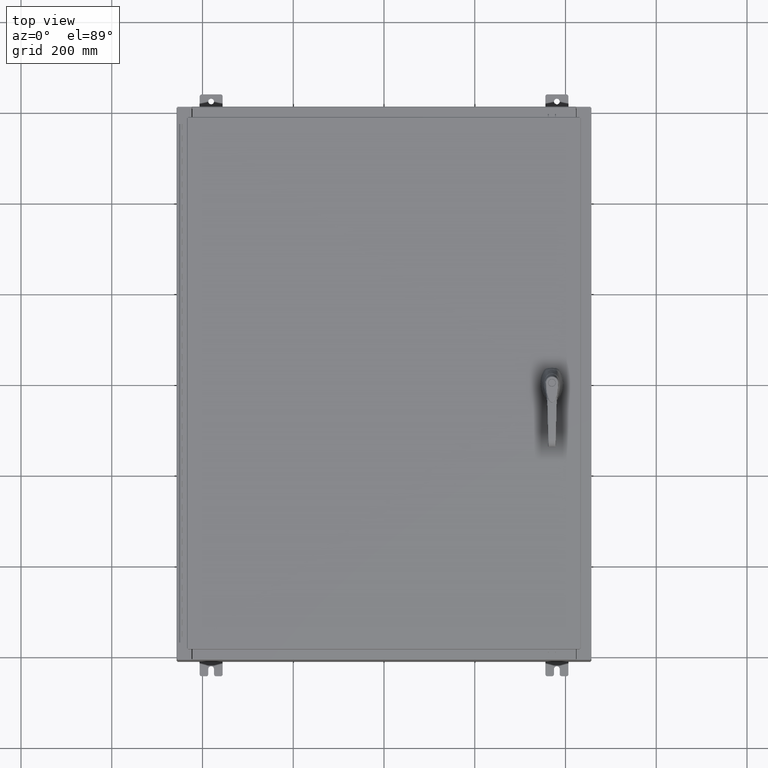
[diagram: clean part render]
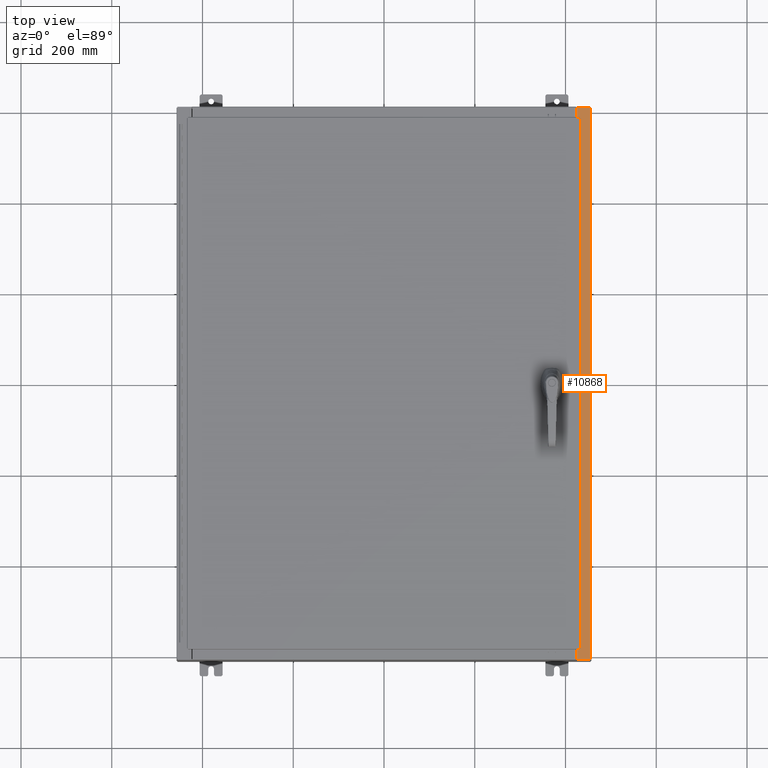
[diagram: same view with one face highlighted and labeled with its STEP entity id]
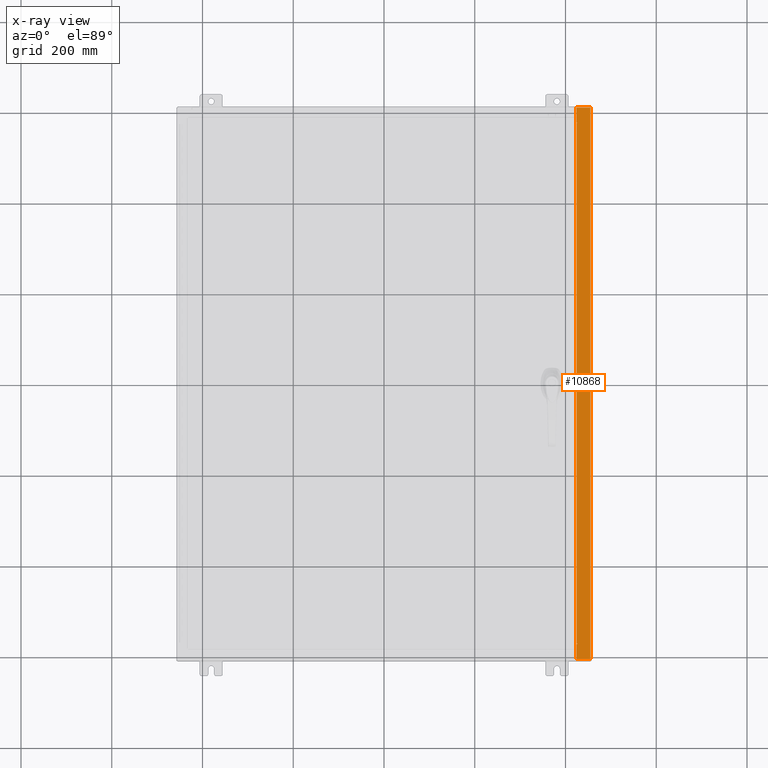
[diagram: x-ray of the same camera — body ghosted, the highlighted face saturated]
A machine part, top view. The second image highlights one B-rep face of the part: STEP entity #10868.
The next image is the same camera in x-ray: the body ghosted, the highlighted face saturated — about 0% of this face is hidden behind the body in this view.
In plain terms, the highlighted planar face has unit normal (-0, 0, -1).
Its self-contained STEP definition (entity closure, byte-faithful):
#1858 = VERTEX_POINT ( 'NONE', #45141 ) ;
#4590 = DIRECTION ( 'NONE',  ( -1.000000000000000000, 0.0000000000000000000, 5.349571789159788500E-015 ) ) ;
#8124 = LINE ( 'NONE', #80734, #113956 ) ;
#8146 = AXIS2_PLACEMENT_3D ( 'NONE', #96466, #66090, #4590 ) ;
#10651 = CARTESIAN_POINT ( 'NONE',  ( 16.69970000000003200, -23.92529999999998900, 9.925300000000008900 ) ) ;
#10868 = ADVANCED_FACE ( 'NONE', ( #40212 ), #127400, .F. ) ;
#13499 = CARTESIAN_POINT ( 'NONE',  ( 16.69970000000003200, 22.63109999999995000, 9.925300000000008900 ) ) ;
#16021 = ORIENTED_EDGE ( 'NONE', *, *, #33361, .F. ) ;
#19710 = ORIENTED_EDGE ( 'NONE', *, *, #122213, .F. ) ;
#19861 = DIRECTION ( 'NONE',  ( 5.349571789159788500E-015, 0.0000000000000000000, 1.000000000000000000 ) ) ;
#22331 = DIRECTION ( 'NONE',  ( -1.000000000000000000, 0.0000000000000000000, 0.0000000000000000000 ) ) ;
#23453 = ORIENTED_EDGE ( 'NONE', *, *, #53113, .T. ) ;
#23807 = DIRECTION ( 'NONE',  ( 1.000000000000000000, 8.144358738339257800E-032, -5.349571789159789300E-015 ) ) ;
#25250 = VECTOR ( 'NONE', #53251, 39.37007874015748100 ) ;
#25343 = CARTESIAN_POINT ( 'NONE',  ( 16.69970000000003200, 23.92529999999998200, 9.925300000000008900 ) ) ;
#25579 = EDGE_CURVE ( 'NONE', #117097, #64671, #46979, .T. ) ;
#26446 = EDGE_CURVE ( 'NONE', #75224, #105820, #88487, .T. ) ;
#26472 = AXIS2_PLACEMENT_3D ( 'NONE', #81257, #19861, #91594 ) ;
#28463 = VERTEX_POINT ( 'NONE', #129454 ) ;
#30700 = VECTOR ( 'NONE', #107697, 39.37007874015748100 ) ;
#31650 = VECTOR ( 'NONE', #23807, 39.37007874015748100 ) ;
#31779 = ORIENTED_EDGE ( 'NONE', *, *, #25579, .T. ) ;
#33060 = ORIENTED_EDGE ( 'NONE', *, *, #117836, .T. ) ;
#33361 = EDGE_CURVE ( 'NONE', #28463, #75224, #74734, .T. ) ;
#35868 = EDGE_CURVE ( 'NONE', #105135, #123104, #119922, .T. ) ;
#36923 = DIRECTION ( 'NONE',  ( 1.000000000000000000, 0.0000000000000000000, 0.0000000000000000000 ) ) ;
#38009 = ORIENTED_EDGE ( 'NONE', *, *, #87470, .F. ) ;
#38195 = VECTOR ( 'NONE', #36923, 39.37007874015748100 ) ;
#38345 = CARTESIAN_POINT ( 'NONE',  ( 16.75005000000003400, 22.61242499999995200, 9.925300000000010700 ) ) ;
#38814 = ORIENTED_EDGE ( 'NONE', *, *, #58896, .F. ) ;
#40212 = FACE_OUTER_BOUND ( 'NONE', #98110, .T. ) ;
#42242 = CARTESIAN_POINT ( 'NONE',  ( 16.69970000000003200, -22.63109999999998600, 9.925300000000008900 ) ) ;
#42770 = EDGE_CURVE ( 'NONE', #132453, #54597, #88625, .T. ) ;
#43031 = CARTESIAN_POINT ( 'NONE',  ( 16.75005000000003400, 22.63109999999995000, 9.925300000000010700 ) ) ;
#44927 = ORIENTED_EDGE ( 'NONE', *, *, #97244, .T. ) ;
#45141 = CARTESIAN_POINT ( 'NONE',  ( 16.75005000000003400, 22.63109999999995000, 9.925300000000008900 ) ) ;
#46605 = VECTOR ( 'NONE', #22331, 39.37007874015748100 ) ;
#46979 = LINE ( 'NONE', #53019, #125428 ) ;
#47243 = CARTESIAN_POINT ( 'NONE',  ( 16.69970000000003200, -22.63109999999998600, 9.925300000000010700 ) ) ;
#47287 = CARTESIAN_POINT ( 'NONE',  ( 17.91230000000003000, 23.92529999999998600, 9.925300000000001800 ) ) ;
#48670 = DIRECTION ( 'NONE',  ( 1.000000000000000000, 0.0000000000000000000, 0.0000000000000000000 ) ) ;
#52144 = CARTESIAN_POINT ( 'NONE',  ( 17.91230000000003000, -23.92529999999998900, 9.925300000000001800 ) ) ;
#53019 = CARTESIAN_POINT ( 'NONE',  ( 16.69970000000003200, -5.350181231484365000E-030, 9.925300000000008900 ) ) ;
#53113 = EDGE_CURVE ( 'NONE', #125272, #54597, #59023, .T. ) ;
#53251 = DIRECTION ( 'NONE',  ( -1.000000000000000000, 0.0000000000000000000, 5.349571789159789300E-015 ) ) ;
#54597 = VERTEX_POINT ( 'NONE', #52144 ) ;
#54818 = CARTESIAN_POINT ( 'NONE',  ( 16.75005000000003400, -22.59374999999998900, 9.925300000000008900 ) ) ;
#58199 = VECTOR ( 'NONE', #128145, 39.37007874015748100 ) ;
#58896 = EDGE_CURVE ( 'NONE', #105820, #1858, #100726, .T. ) ;
#59023 = LINE ( 'NONE', #64658, #31650 ) ;
#62310 = CARTESIAN_POINT ( 'NONE',  ( 16.75005000000003400, 22.59374999999995400, 9.925300000000008900 ) ) ;
#64658 = CARTESIAN_POINT ( 'NONE',  ( 5.335691853495976800E-014, -23.92529999999998900, 9.925300000000099500 ) ) ;
#64671 = VERTEX_POINT ( 'NONE', #13499 ) ;
#66090 = DIRECTION ( 'NONE',  ( -5.349571789159788500E-015, 0.0000000000000000000, -1.000000000000000000 ) ) ;
#70988 = VECTOR ( 'NONE', #78565, 39.37007874015748100 ) ;
#72094 = ORIENTED_EDGE ( 'NONE', *, *, #35868, .F. ) ;
#73052 = EDGE_CURVE ( 'NONE', #123104, #86965, #97978, .T. ) ;
#74734 = LINE ( 'NONE', #77984, #129239 ) ;
#75224 = VERTEX_POINT ( 'NONE', #100993 ) ;
#77028 = LINE ( 'NONE', #43031, #46605 ) ;
#77071 = CARTESIAN_POINT ( 'NONE',  ( 17.91230000000003000, -23.92529999999998900, 9.925300000000001800 ) ) ;
#77984 = CARTESIAN_POINT ( 'NONE',  ( 16.71270000000003400, -22.59374999999997900, 9.925300000000010700 ) ) ;
#78565 = DIRECTION ( 'NONE',  ( -1.000000000000000000, 0.0000000000000000000, 0.0000000000000000000 ) ) ;
#80734 = CARTESIAN_POINT ( 'NONE',  ( 16.69970000000003200, -5.350181231484365000E-030, 9.925300000000008900 ) ) ;
#81257 = CARTESIAN_POINT ( 'NONE',  ( 16.75005000000003400, -22.61242499999998800, 9.925300000000010700 ) ) ;
#82193 = AXIS2_PLACEMENT_3D ( 'NONE', #38345, #109986, #48670 ) ;
#86965 = VERTEX_POINT ( 'NONE', #54818 ) ;
#87470 = EDGE_CURVE ( 'NONE', #1858, #64671, #77028, .T. ) ;
#88487 = LINE ( 'NONE', #97390, #30700 ) ;
#88625 = LINE ( 'NONE', #77071, #58199 ) ;
#91594 = DIRECTION ( 'NONE',  ( 1.000000000000000000, 0.0000000000000000000, 0.0000000000000000000 ) ) ;
#96466 = CARTESIAN_POINT ( 'NONE',  ( 5.335691853495976800E-014, 0.0000000000000000000, 9.925300000000099500 ) ) ;
#97244 = EDGE_CURVE ( 'NONE', #132453, #117097, #131055, .T. ) ;
#97390 = CARTESIAN_POINT ( 'NONE',  ( 16.71270000000003400, 22.59374999999995400, 9.925300000000010700 ) ) ;
#97978 = CIRCLE ( 'NONE', #26472, 0.01867499999999949400 ) ;
#98110 = EDGE_LOOP ( 'NONE', ( #72094, #33060, #23453, #129964, #44927, #31779, #38009, #38814, #105341, #16021, #19710, #111761 ) ) ;
#100726 = CIRCLE ( 'NONE', #82193, 0.01867499999999949400 ) ;
#100993 = CARTESIAN_POINT ( 'NONE',  ( 16.71270000000003400, 22.59374999999995400, 9.925300000000010700 ) ) ;
#105135 = VERTEX_POINT ( 'NONE', #42242 ) ;
#105341 = ORIENTED_EDGE ( 'NONE', *, *, #26446, .F. ) ;
#105820 = VERTEX_POINT ( 'NONE', #62310 ) ;
#107697 = DIRECTION ( 'NONE',  ( 1.000000000000000000, 0.0000000000000000000, 0.0000000000000000000 ) ) ;
#109986 = DIRECTION ( 'NONE',  ( 5.349571789159788500E-015, 0.0000000000000000000, 1.000000000000000000 ) ) ;
#111761 = ORIENTED_EDGE ( 'NONE', *, *, #73052, .F. ) ;
#113956 = VECTOR ( 'NONE', #121948, 39.37007874015748100 ) ;
#114344 = DIRECTION ( 'NONE',  ( -3.203758888773074600E-031, -1.000000000000000000, 1.713873817065035100E-045 ) ) ;
#117097 = VERTEX_POINT ( 'NONE', #25343 ) ;
#117836 = EDGE_CURVE ( 'NONE', #105135, #125272, #8124, .T. ) ;
#119621 = DIRECTION ( 'NONE',  ( -0.0000000000000000000, 1.000000000000000000, -0.0000000000000000000 ) ) ;
#119760 = CARTESIAN_POINT ( 'NONE',  ( 16.75005000000003400, -22.59374999999998900, 9.925300000000010700 ) ) ;
#119922 = LINE ( 'NONE', #47243, #38195 ) ;
#121948 = DIRECTION ( 'NONE',  ( -3.203758888773074600E-031, -1.000000000000000000, 1.713873817065035100E-045 ) ) ;
#122213 = EDGE_CURVE ( 'NONE', #86965, #28463, #122229, .T. ) ;
#122229 = LINE ( 'NONE', #119760, #70988 ) ;
#122437 = CARTESIAN_POINT ( 'NONE',  ( 16.75005000000003400, -22.63109999999998600, 9.925300000000008900 ) ) ;
#123104 = VERTEX_POINT ( 'NONE', #122437 ) ;
#124858 = CARTESIAN_POINT ( 'NONE',  ( 5.335691853495976800E-014, 23.92529999999998600, 9.925300000000099500 ) ) ;
#125272 = VERTEX_POINT ( 'NONE', #10651 ) ;
#125428 = VECTOR ( 'NONE', #114344, 39.37007874015748100 ) ;
#127400 = PLANE ( 'NONE',  #8146 ) ;
#128145 = DIRECTION ( 'NONE',  ( -0.0000000000000000000, -1.000000000000000000, -0.0000000000000000000 ) ) ;
#129239 = VECTOR ( 'NONE', #119621, 39.37007874015748100 ) ;
#129454 = CARTESIAN_POINT ( 'NONE',  ( 16.71270000000003400, -22.59374999999998900, 9.925300000000010700 ) ) ;
#129964 = ORIENTED_EDGE ( 'NONE', *, *, #42770, .F. ) ;
#131055 = LINE ( 'NONE', #124858, #25250 ) ;
#132453 = VERTEX_POINT ( 'NONE', #47287 ) ;